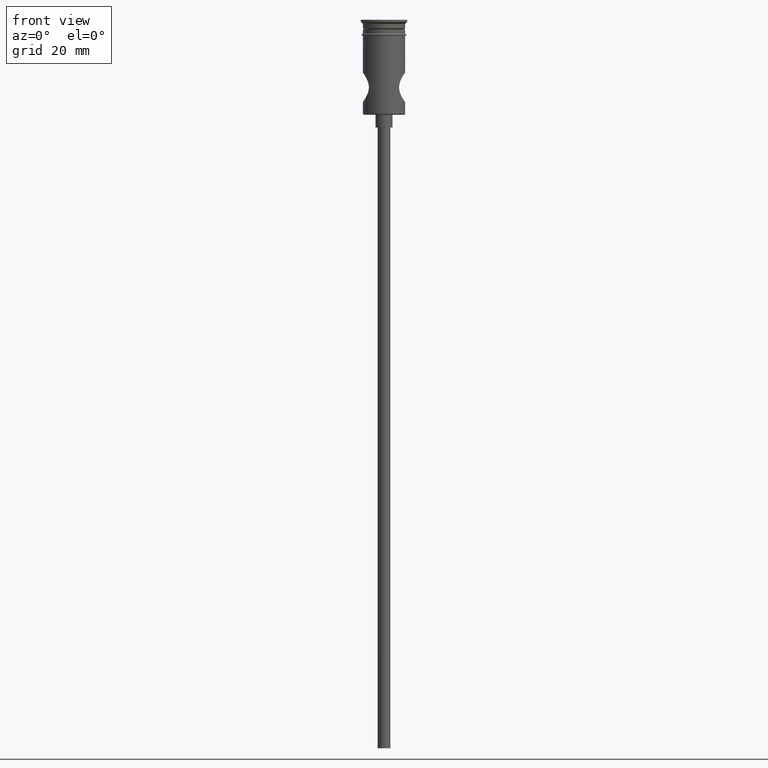
[diagram: clean part render]
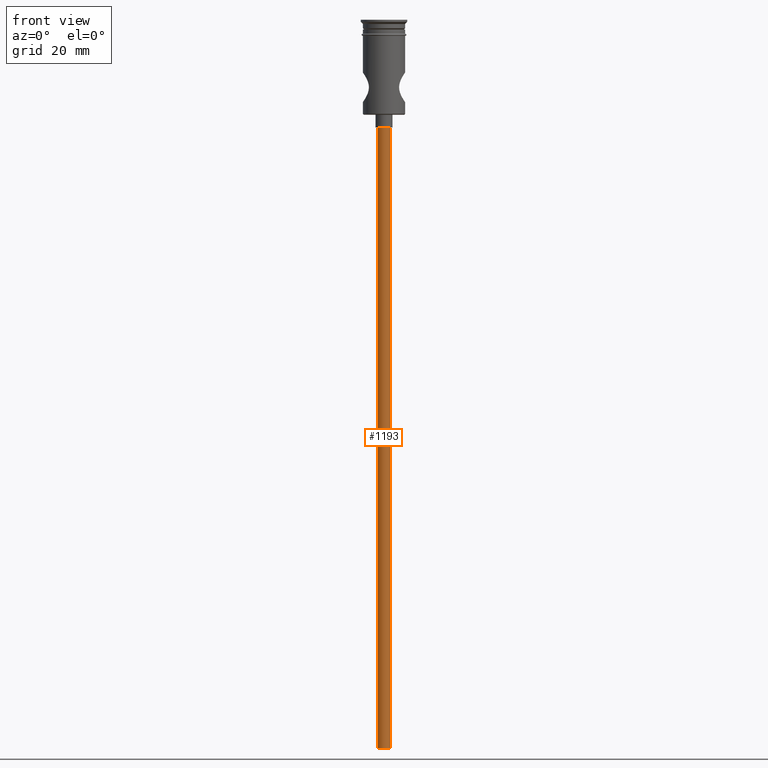
[diagram: same view with one face highlighted and labeled with its STEP entity id]
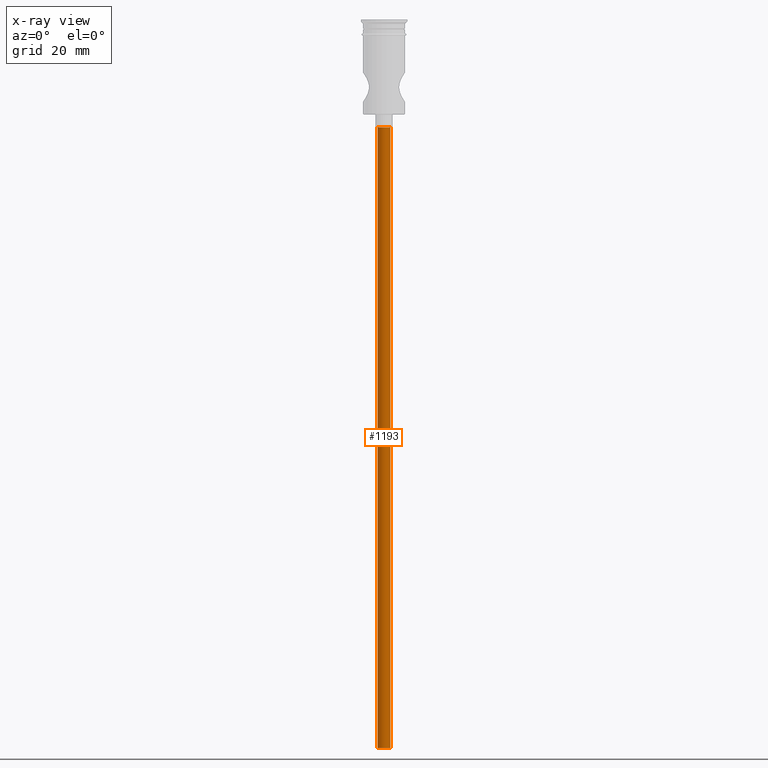
[diagram: x-ray of the same camera — body ghosted, the highlighted face saturated]
A machine part, front view. The second image highlights one B-rep face of the part: STEP entity #1193.
The next image is the same camera in x-ray: the body ghosted, the highlighted face saturated — about 0% of this face is hidden behind the body in this view.
In plain terms, the highlighted cylindrical surface (edge-blend (fillet) strip) has radius 1.5 mm, axis along (-0, -0, 1).
Its self-contained STEP definition (entity closure, byte-faithful):
#49 = CIRCLE ( 'NONE', #882, 1.500000000000000222 ) ;
#63 = CARTESIAN_POINT ( 'NONE',  ( -1.500000000000000222, 1.836970198721030181E-16, -25.50000000000000000 ) ) ;
#84 = VERTEX_POINT ( 'NONE', #302 ) ;
#99 = EDGE_CURVE ( 'NONE', #1417, #1133, #49, .T. ) ;
#147 = CIRCLE ( 'NONE', #1345, 1.500000000000000222 ) ;
#156 = ORIENTED_EDGE ( 'NONE', *, *, #1319, .T. ) ;
#207 = DIRECTION ( 'NONE',  ( -0.000000000000000000, -0.000000000000000000, 1.000000000000000000 ) ) ;
#241 = CARTESIAN_POINT ( 'NONE',  ( 0.000000000000000000, 0.000000000000000000, -172.5000000000000000 ) ) ;
#302 = CARTESIAN_POINT ( 'NONE',  ( 1.500000000000000222, 0.000000000000000000, -25.50000000000000000 ) ) ;
#310 = CARTESIAN_POINT ( 'NONE',  ( -1.500000000000000222, 1.836970198721030181E-16, -172.5000000000000000 ) ) ;
#368 = VECTOR ( 'NONE', #557, 1000.000000000000000 ) ;
#410 = VECTOR ( 'NONE', #207, 1000.000000000000000 ) ;
#557 = DIRECTION ( 'NONE',  ( -0.000000000000000000, -0.000000000000000000, 1.000000000000000000 ) ) ;
#560 = CARTESIAN_POINT ( 'NONE',  ( 0.000000000000000000, 0.000000000000000000, -25.50000000000000000 ) ) ;
#581 = CARTESIAN_POINT ( 'NONE',  ( 1.500000000000000222, 0.000000000000000000, -172.5000000000000000 ) ) ;
#685 = ORIENTED_EDGE ( 'NONE', *, *, #1140, .F. ) ;
#755 = DIRECTION ( 'NONE',  ( 1.000000000000000000, 0.000000000000000000, 0.000000000000000000 ) ) ;
#781 = LINE ( 'NONE', #787, #368 ) ;
#787 = CARTESIAN_POINT ( 'NONE',  ( 1.500000000000000222, 0.000000000000000000, -172.5000000000000000 ) ) ;
#795 = DIRECTION ( 'NONE',  ( -1.000000000000000000, 0.000000000000000000, 0.000000000000000000 ) ) ;
#822 = VERTEX_POINT ( 'NONE', #63 ) ;
#870 = CARTESIAN_POINT ( 'NONE',  ( 0.000000000000000000, 0.000000000000000000, -172.5000000000000000 ) ) ;
#882 = AXIS2_PLACEMENT_3D ( 'NONE', #241, #1143, #1131 ) ;
#911 = ORIENTED_EDGE ( 'NONE', *, *, #99, .F. ) ;
#952 = DIRECTION ( 'NONE',  ( -0.000000000000000000, -0.000000000000000000, 1.000000000000000000 ) ) ;
#978 = EDGE_CURVE ( 'NONE', #84, #822, #147, .T. ) ;
#1005 = CARTESIAN_POINT ( 'NONE',  ( -1.500000000000000222, 1.836970198721030181E-16, -172.5000000000000000 ) ) ;
#1016 = DIRECTION ( 'NONE',  ( 0.000000000000000000, 0.000000000000000000, -1.000000000000000000 ) ) ;
#1025 = ORIENTED_EDGE ( 'NONE', *, *, #978, .T. ) ;
#1094 = CYLINDRICAL_SURFACE ( 'NONE', #1299, 1.500000000000000222 ) ;
#1131 = DIRECTION ( 'NONE',  ( -1.000000000000000000, 0.000000000000000000, 0.000000000000000000 ) ) ;
#1133 = VERTEX_POINT ( 'NONE', #310 ) ;
#1140 = EDGE_CURVE ( 'NONE', #1133, #822, #1228, .T. ) ;
#1143 = DIRECTION ( 'NONE',  ( 0.000000000000000000, 0.000000000000000000, -1.000000000000000000 ) ) ;
#1193 = ADVANCED_FACE ( 'NONE', ( #1206 ), #1094, .T. ) ;
#1206 = FACE_OUTER_BOUND ( 'NONE', #1241, .T. ) ;
#1228 = LINE ( 'NONE', #1005, #410 ) ;
#1241 = EDGE_LOOP ( 'NONE', ( #685, #911, #156, #1025 ) ) ;
#1299 = AXIS2_PLACEMENT_3D ( 'NONE', #870, #952, #755 ) ;
#1319 = EDGE_CURVE ( 'NONE', #1417, #84, #781, .T. ) ;
#1345 = AXIS2_PLACEMENT_3D ( 'NONE', #560, #1016, #795 ) ;
#1417 = VERTEX_POINT ( 'NONE', #581 ) ;